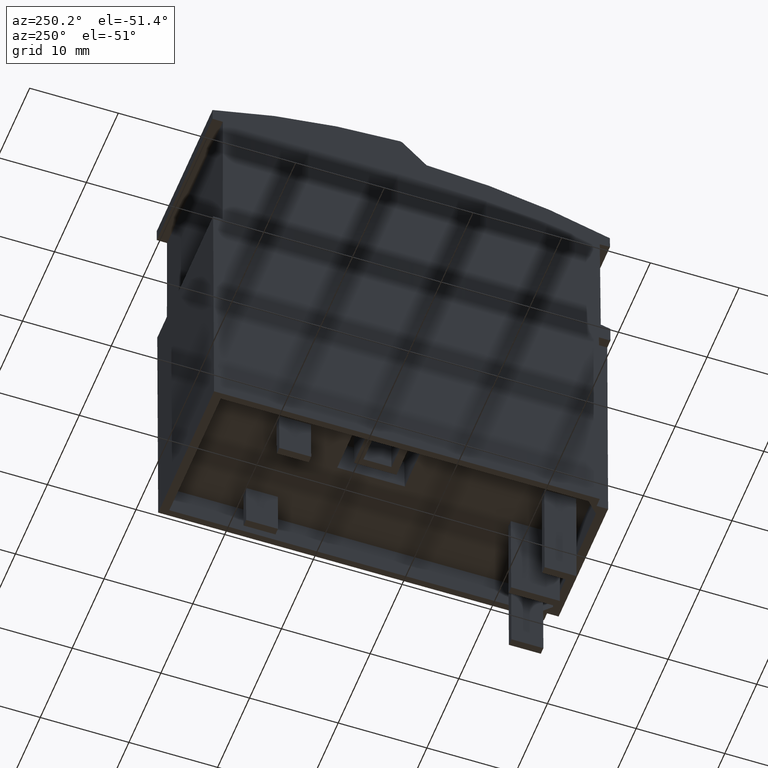
[diagram: clean part render]
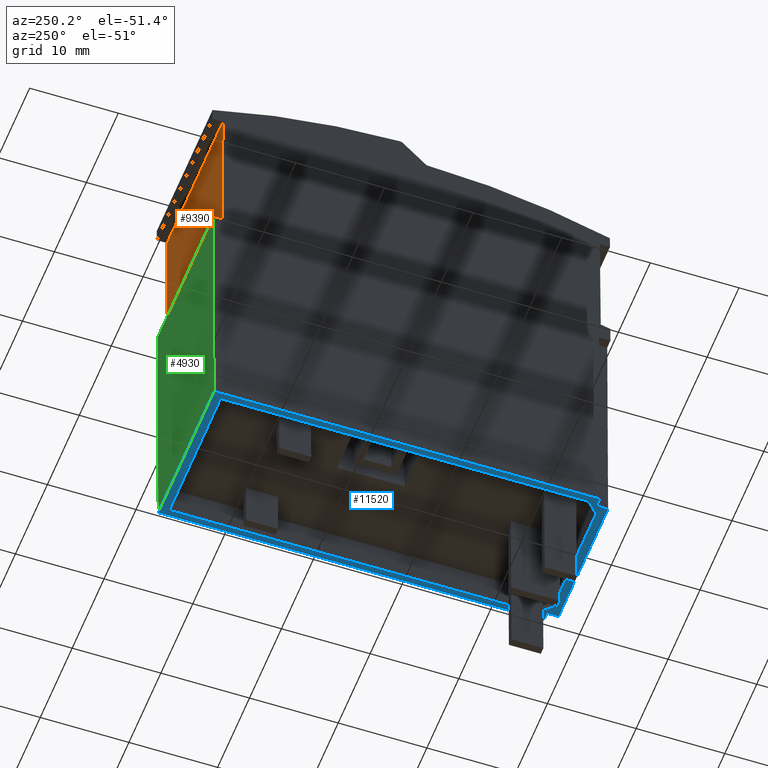
[diagram: same view with three faces highlighted in distinct colors, each labeled with its STEP entity id]
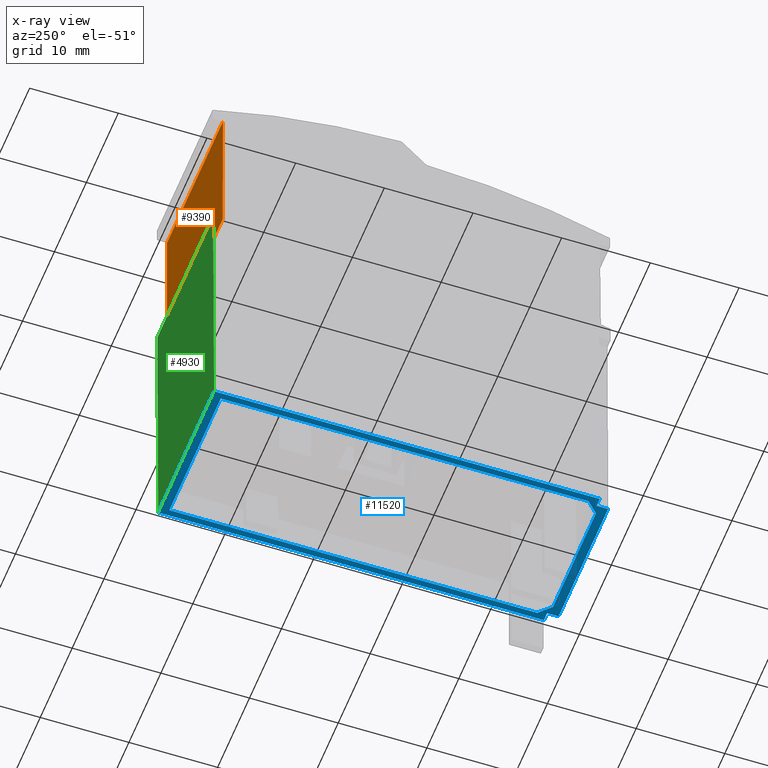
[diagram: x-ray of the same camera — body ghosted, the three highlighted faces saturated]
A machine part, auxiliary view with three faces highlighted in distinct colors.
The next image is the same camera in x-ray (body ghosted, the three faces saturated) — at least one of them is partly hidden behind the body in this view.
Their STEP definitions:

[orange] entity #9390 — the highlighted planar face has unit normal (0, -1, -0.001).
#1150=CARTESIAN_POINT('',(6.6424396179536,44.7677169355457,
18.5305241959885));
#1160=VERTEX_POINT('',#1150);
#1190=CARTESIAN_POINT('',(6.71129923943435,-21.80005621167,
18.5305241959885));
#1200=DIRECTION('',(-0.00103442824333508,0.999999464978962,
-8.67390393508468E-19));
#1210=VECTOR('',#1200,1.);
#1220=LINE('',#1190,#1210);
#1230=CARTESIAN_POINT('',(6.62531881464075,61.3186901549667,
18.5305241959885));
#1240=VERTEX_POINT('',#1230);
#1250=EDGE_CURVE('',#1160,#1240,#1220,.T.);
#4200=CARTESIAN_POINT('',(6.62531881464076,61.3186901549668,
36.0306384267959));
#4210=VERTEX_POINT('',#4200);
#4240=CARTESIAN_POINT('',(6.71129923943435,-21.80005621167,
36.0306384267959));
#4250=DIRECTION('',(0.00103442824333508,-0.999999464978962,
4.33709524514266E-19));
#4260=VECTOR('',#4250,1.);
#4270=LINE('',#4240,#4260);
#4280=CARTESIAN_POINT('',(6.6424396179536,44.7677169355457,
36.0306384267959));
#4290=VERTEX_POINT('',#4280);
#4300=EDGE_CURVE('',#4210,#4290,#4270,.T.);
#5060=CARTESIAN_POINT('',(6.6424396179536,44.7677169355457,
-15.1194758041039));
#5070=DIRECTION('',(-1.03086371928786E-20,1.79919842279765E-23,1.));
#5080=VECTOR('',#5070,1.);
#5090=LINE('',#5060,#5080);
#5100=EDGE_CURVE('',#1160,#4290,#5090,.T.);
#9110=CARTESIAN_POINT('',(6.62531881464076,61.3186901549667,
-15.1194758041039));
#9120=DIRECTION('',(-1.03086371928786E-20,1.79919842279765E-23,1.));
#9130=VECTOR('',#9120,1.);
#9140=LINE('',#9110,#9130);
#9150=EDGE_CURVE('',#1240,#4210,#9140,.T.);
#9280=CARTESIAN_POINT('',(6.62605218083399,60.6097325200638,
34.3370950971472));
#9290=DIRECTION('',(-0.999999464978962,-0.00103442824333508,
-1.03086130661242E-20));
#9300=DIRECTION('',(0.00103442824333508,-0.999999464978962,
2.86555200644944E-23));
#9310=AXIS2_PLACEMENT_3D('',#9280,#9290,#9300);
#9320=PLANE('',#9310);
#9330=ORIENTED_EDGE('',*,*,#9150,.T.);
#9340=ORIENTED_EDGE('',*,*,#1250,.T.);
#9350=ORIENTED_EDGE('',*,*,#5100,.F.);
#9360=ORIENTED_EDGE('',*,*,#4300,.T.);
#9370=EDGE_LOOP('',(#9360,#9350,#9340,#9330));
#9380=FACE_OUTER_BOUND('',#9370,.T.);
#9390=ADVANCED_FACE('',(#9380),#9320,.F.);

[blue] entity #11520 — the highlighted planar face has unit normal (0, -0.0035, -1).
#910=CARTESIAN_POINT('',(-35.8758943678612,15.2051002437155,
18.5305241959885));
#920=VERTEX_POINT('',#910);
#950=CARTESIAN_POINT('',(54.9647381007265,14.8880053295785,
18.5305241959885));
#960=DIRECTION('',(-0.99999390765779,0.00349065141522352,
-2.44939668466664E-16));
#970=VECTOR('',#960,1.);
#980=LINE('',#950,#970);
#990=CARTESIAN_POINT('',(7.62384061525408,15.0532569071533,
18.5305241959885));
#1000=VERTEX_POINT('',#990);
#1010=EDGE_CURVE('',#1000,#920,#980,.T.);
#4440=CARTESIAN_POINT('',(7.62384061525408,15.0532569071533,
36.0306384267959));
#4450=VERTEX_POINT('',#4440);
#4480=CARTESIAN_POINT('',(54.9647381007265,14.8880053295785,
36.0306384267959));
#4490=DIRECTION('',(-0.99999390765779,0.00349065141522352,
-1.22474988551928E-16));
#4500=VECTOR('',#4490,1.);
#4510=LINE('',#4480,#4500);
#4520=CARTESIAN_POINT('',(-35.8758943678612,15.2051002437155,
36.0306384267959));
#4530=VERTEX_POINT('',#4520);
#4540=EDGE_CURVE('',#4450,#4530,#4510,.T.);
#4850=CARTESIAN_POINT('',(7.62384061525409,15.0532569071533,
-15.1194758041039));
#4860=DIRECTION('',(1.2247424245519E-16,-4.27499500243494E-19,-1.));
#4870=VECTOR('',#4860,1.);
#4880=LINE('',#4850,#4870);
#4890=EDGE_CURVE('',#4450,#1000,#4880,.T.);
#10190=CARTESIAN_POINT('',(-37.1758864478162,15.2096380905553,
-15.1194758041039));
#10200=DIRECTION('',(3.67402110091183E-16,-1.28246251676203E-18,-1.));
#10210=VECTOR('',#10200,1.);
#10220=LINE('',#10190,#10210);
#10230=CARTESIAN_POINT('',(-37.1758864478163,15.2096380905553,
35.0306384267959));
#10240=VERTEX_POINT('',#10230);
#10250=CARTESIAN_POINT('',(-37.1758864478163,15.2096380905553,
19.5306384267958));
#10260=VERTEX_POINT('',#10250);
#10270=EDGE_CURVE('',#10240,#10260,#10220,.T.);
#10630=CARTESIAN_POINT('',(6.87491986404735,15.0558711443602,
35.9807034268883));
#10640=DIRECTION('',(-0.00349065141522352,-0.99999390765779,
-1.79919843916959E-23));
#10650=DIRECTION('',(0.99999390765779,-0.00349065141522352,
1.03086371928783E-20));
#10660=AXIS2_PLACEMENT_3D('',#10630,#10640,#10650);
#10670=PLANE('',#10660);
#10680=CARTESIAN_POINT('',(54.9647381007265,14.8880053295785,
-70.5933901898541));
#10690=DIRECTION('',(0.707102473250069,-0.00246826328646301,
-0.707106781186536));
#10700=VECTOR('',#10690,1.);
#10710=LINE('',#10680,#10700);
#10720=CARTESIAN_POINT('',(-36.1747670335505,15.2061435103649,
20.5466702008568));
#10730=VERTEX_POINT('',#10720);
#10740=CARTESIAN_POINT('',(-34.8587432772054,15.2015497021903,
19.2306384267959));
#10750=VERTEX_POINT('',#10740);
#10760=EDGE_CURVE('',#10730,#10750,#10710,.T.);
#10770=ORIENTED_EDGE('',*,*,#10760,.F.);
#10780=CARTESIAN_POINT('',(54.9647381007265,14.8880053295785,
19.2306384267959));
#10790=DIRECTION('',(0.99999390765779,-0.00349065141522352,
1.22474988551928E-16));
#10800=VECTOR('',#10790,1.);
#10810=LINE('',#10780,#10800);
#10820=CARTESIAN_POINT('',(6.62384880902825,15.0567475512331,
19.2306384267959));
#10830=VERTEX_POINT('',#10820);
#10840=EDGE_CURVE('',#10750,#10830,#10810,.T.);
#10850=ORIENTED_EDGE('',*,*,#10840,.F.);
#10860=CARTESIAN_POINT('',(6.62384880902826,15.0567475512331,
-15.1194758041039));
#10870=DIRECTION('',(-1.2247424245519E-16,4.27499500243494E-19,1.));
#10880=VECTOR('',#10870,1.);
#10890=LINE('',#10860,#10880);
#10900=CARTESIAN_POINT('',(6.62384880902825,15.0567475512331,
35.3306384267959));
#10910=VERTEX_POINT('',#10900);
#10920=EDGE_CURVE('',#10830,#10910,#10890,.T.);
#10930=ORIENTED_EDGE('',*,*,#10920,.F.);
#10940=CARTESIAN_POINT('',(54.9647381007265,14.8880053295785,
35.3306384267959));
#10950=DIRECTION('',(0.99999390765779,-0.00349065141522352,
1.03086371928783E-20));
#10960=VECTOR('',#10950,1.);
#10970=LINE('',#10940,#10960);
#10980=CARTESIAN_POINT('',(-34.8587432772055,15.2015497021903,
35.3306384267959));
#10990=VERTEX_POINT('',#10980);
#11000=EDGE_CURVE('',#10990,#10910,#10970,.T.);
#11010=ORIENTED_EDGE('',*,*,#11000,.T.);
#11020=CARTESIAN_POINT('',(54.9647381007265,14.8880053295785,
125.154667043446));
#11030=DIRECTION('',(0.707102473250069,-0.00246826328646301,
0.707106781186536));
#11040=VECTOR('',#11030,1.);
#11050=LINE('',#11020,#11040);
#11060=CARTESIAN_POINT('',(-36.1757922723366,15.206147089138,
34.0135814077027));
#11070=VERTEX_POINT('',#11060);
#11080=EDGE_CURVE('',#11070,#10990,#11050,.T.);
#11090=ORIENTED_EDGE('',*,*,#11080,.T.);
#11100=CARTESIAN_POINT('',(-36.1720517623444,15.2061340322419,
-15.1194758041039));
#11110=DIRECTION('',(-7.61302103628973E-5,2.65745645557925E-7,
0.99999999710206));
#11120=VECTOR('',#11110,1.);
#11130=LINE('',#11100,#11120);
#11140=EDGE_CURVE('',#10730,#11070,#11130,.T.);
#11150=ORIENTED_EDGE('',*,*,#11140,.T.);
#11160=EDGE_LOOP('',(#11150,#11090,#11010,#10930,#10850,#10770));
#11170=FACE_BOUND('',#11160,.T.);
#11180=CARTESIAN_POINT('',(54.9647381007265,14.8880053295785,
35.030638426796));
#11190=DIRECTION('',(0.99999390765779,-0.00349065141522352,
1.48129430885449E-16));
#11200=VECTOR('',#11190,1.);
#11210=LINE('',#11180,#11200);
#11220=CARTESIAN_POINT('',(-35.8758943678612,15.2051002437155,
35.0306384267959));
#11230=VERTEX_POINT('',#11220);
#11240=EDGE_CURVE('',#10240,#11230,#11210,.T.);
#11250=ORIENTED_EDGE('',*,*,#11240,.F.);
#11260=CARTESIAN_POINT('',(-35.8758943678612,15.2051002437155,
-15.1194758041039));
#11270=DIRECTION('',(1.2247424245519E-16,-4.27499500243494E-19,-1.));
#11280=VECTOR('',#11270,1.);
#11290=LINE('',#11260,#11280);
#11300=EDGE_CURVE('',#4530,#11230,#11290,.T.);
#11310=ORIENTED_EDGE('',*,*,#11300,.T.);
#11320=ORIENTED_EDGE('',*,*,#4540,.T.);
#11330=ORIENTED_EDGE('',*,*,#4890,.F.);
#11340=ORIENTED_EDGE('',*,*,#1010,.F.);
#11350=CARTESIAN_POINT('',(-35.8758943678612,15.2051002437155,
-15.1194758041039));
#11360=DIRECTION('',(-1.2247424245519E-16,4.27499500243494E-19,1.));
#11370=VECTOR('',#11360,1.);
#11380=LINE('',#11350,#11370);
#11390=CARTESIAN_POINT('',(-35.8758943678612,15.2051002437155,
19.5306384267958));
#11400=VERTEX_POINT('',#11390);
#11410=EDGE_CURVE('',#920,#11400,#11380,.T.);
#11420=ORIENTED_EDGE('',*,*,#11410,.F.);
#11430=CARTESIAN_POINT('',(54.9647381007265,14.8880053295785,
19.5306384267958));
#11440=DIRECTION('',(0.99999390765779,-0.00349065141522352,
9.68205462184078E-17));
#11450=VECTOR('',#11440,1.);
#11460=LINE('',#11430,#11450);
#11470=EDGE_CURVE('',#10260,#11400,#11460,.T.);
#11480=ORIENTED_EDGE('',*,*,#11470,.T.);
#11490=ORIENTED_EDGE('',*,*,#10270,.T.);
#11500=EDGE_LOOP('',(#11490,#11480,#11420,#11340,#11330,#11320,#11310,
#11250));
#11510=FACE_OUTER_BOUND('',#11500,.T.);
#11520=ADVANCED_FACE('',(#11170,#11510),#10670,.T.);

[green] entity #4930 — the highlighted planar face has unit normal (-0, 1, -0.0035).
#990=CARTESIAN_POINT('',(7.62384061525408,15.0532569071533,
18.5305241959885));
#1000=VERTEX_POINT('',#990);
#1030=CARTESIAN_POINT('',(7.49518821039688,-21.8027925114864,
18.5305241959885));
#1040=DIRECTION('',(-0.00349065141522352,-0.99999390765779,
-1.79919843916959E-23));
#1050=VECTOR('',#1040,1.);
#1060=LINE('',#1030,#1050);
#1070=CARTESIAN_POINT('',(7.72755084726485,44.763929167421,
18.5305241959885));
#1080=VERTEX_POINT('',#1070);
#1090=EDGE_CURVE('',#1080,#1000,#1060,.T.);
#4360=CARTESIAN_POINT('',(7.72755084726485,44.763929167421,
36.0306384267959));
#4370=VERTEX_POINT('',#4360);
#4400=CARTESIAN_POINT('',(7.49518821039688,-21.8027925114864,
36.0306384267959));
#4410=DIRECTION('',(0.00349065141522352,0.99999390765779,
1.79919843916959E-23));
#4420=VECTOR('',#4410,1.);
#4430=LINE('',#4400,#4420);
#4440=CARTESIAN_POINT('',(7.62384061525408,15.0532569071533,
36.0306384267959));
#4450=VERTEX_POINT('',#4440);
#4460=EDGE_CURVE('',#4450,#4370,#4430,.T.);
#4720=CARTESIAN_POINT('',(7.64475411356624,21.0445085138764,
25.7558601081778));
#4730=DIRECTION('',(0.99999390765779,-0.00349065141522352,
1.22474988551928E-16));
#4740=DIRECTION('',(-0.00349065141522352,-0.99999390765779,
-1.79919843916959E-23));
#4750=AXIS2_PLACEMENT_3D('',#4720,#4730,#4740);
#4760=PLANE('',#4750);
#4770=ORIENTED_EDGE('',*,*,#4460,.F.);
#4780=CARTESIAN_POINT('',(7.72755084726486,44.763929167421,
-15.1194758041039));
#4790=DIRECTION('',(-1.2247424245519E-16,4.27499500243494E-19,1.));
#4800=VECTOR('',#4790,1.);
#4810=LINE('',#4780,#4800);
#4820=EDGE_CURVE('',#1080,#4370,#4810,.T.);
#4830=ORIENTED_EDGE('',*,*,#4820,.T.);
#4840=ORIENTED_EDGE('',*,*,#1090,.F.);
#4850=CARTESIAN_POINT('',(7.62384061525409,15.0532569071533,
-15.1194758041039));
#4860=DIRECTION('',(1.2247424245519E-16,-4.27499500243494E-19,-1.));
#4870=VECTOR('',#4860,1.);
#4880=LINE('',#4850,#4870);
#4890=EDGE_CURVE('',#4450,#1000,#4880,.T.);
#4900=ORIENTED_EDGE('',*,*,#4890,.T.);
#4910=EDGE_LOOP('',(#4900,#4840,#4830,#4770));
#4920=FACE_OUTER_BOUND('',#4910,.T.);
#4930=ADVANCED_FACE('',(#4920),#4760,.T.);